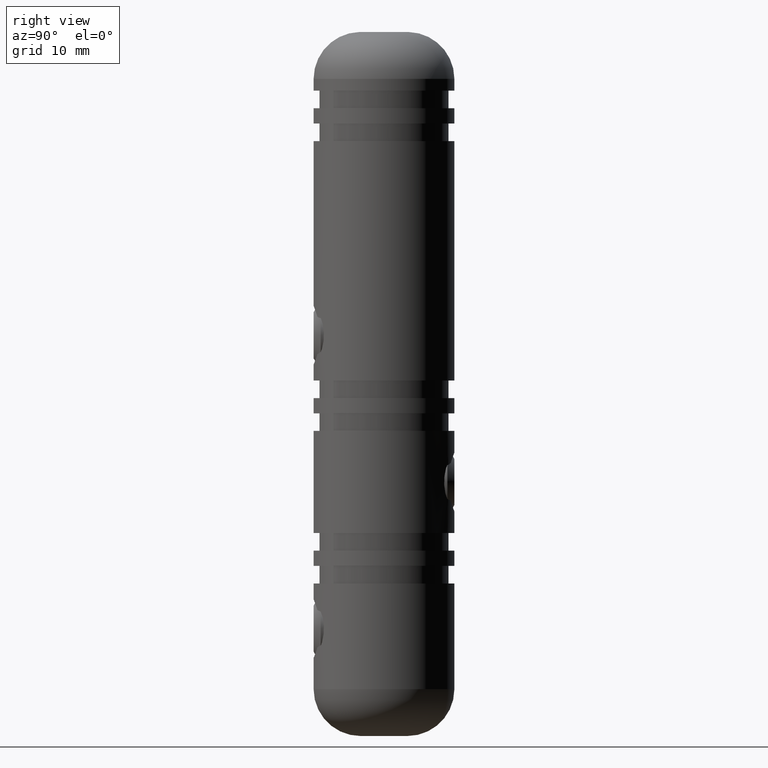
[diagram: clean part render]
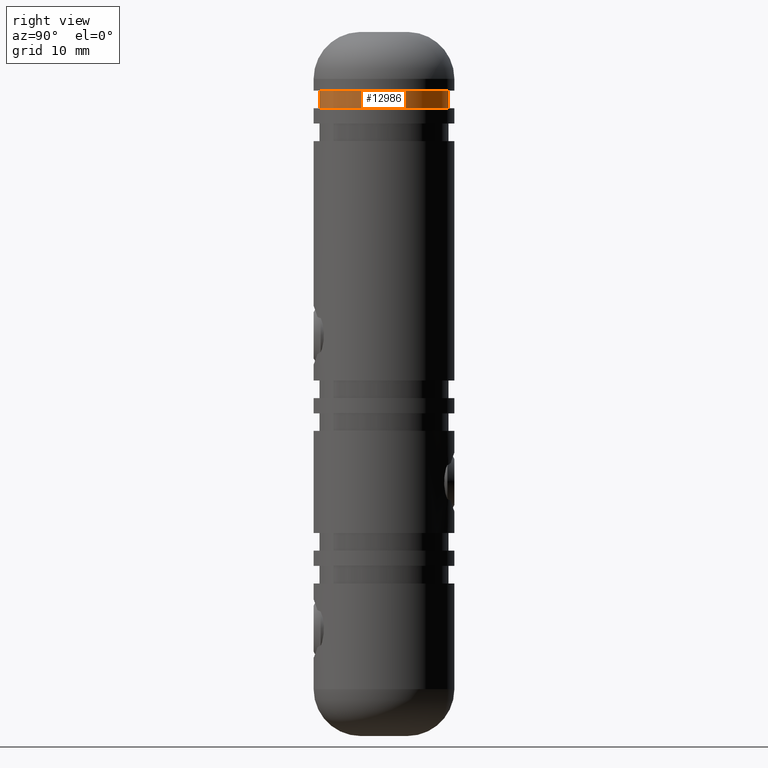
[diagram: same view with one face highlighted and labeled with its STEP entity id]
A machine part, right view. The second image highlights one B-rep face of the part: STEP entity #12986.
In plain terms, the highlighted cylindrical surface (partial cylindrical patch) has radius 5.5 mm, axis along (0, 0, 1).
Its self-contained STEP definition (entity closure, byte-faithful):
#229 = DIRECTION ( 'NONE',  ( -0.0000000000000000000, 6.237694939725493400E-017, 1.000000000000000000 ) ) ;
#1010 = CARTESIAN_POINT ( 'NONE',  ( 6.735557395310421300E-016, 5.499999999999982200, 23.49999999999999600 ) ) ;
#1074 = FACE_OUTER_BOUND ( 'NONE', #6269, .T. ) ;
#1423 = AXIS2_PLACEMENT_3D ( 'NONE', #2591, #2832, #12348 ) ;
#2045 = ORIENTED_EDGE ( 'NONE', *, *, #14246, .F. ) ;
#2114 = VECTOR ( 'NONE', #229, 1000.000000000000000 ) ;
#2357 = CARTESIAN_POINT ( 'NONE',  ( 0.0000000000000000000, -3.118847469862743400E-016, 24.99999999999999600 ) ) ;
#2457 = EDGE_CURVE ( 'NONE', #14737, #2703, #12142, .T. ) ;
#2523 = VERTEX_POINT ( 'NONE', #11068 ) ;
#2591 = CARTESIAN_POINT ( 'NONE',  ( 0.0000000000000000000, -4.054501710821568100E-016, 23.49999999999999600 ) ) ;
#2703 = VERTEX_POINT ( 'NONE', #15836 ) ;
#2819 = CIRCLE ( 'NONE', #1423, 5.499999999999982200 ) ;
#2832 = DIRECTION ( 'NONE',  ( -0.0000000000000000000, 6.237694939725493400E-017, 1.000000000000000000 ) ) ;
#2934 = AXIS2_PLACEMENT_3D ( 'NONE', #11958, #13207, #8979 ) ;
#4141 = VERTEX_POINT ( 'NONE', #1010 ) ;
#5540 = VECTOR ( 'NONE', #9364, 1000.000000000000000 ) ;
#5946 = CIRCLE ( 'NONE', #14464, 5.499999999999982200 ) ;
#6269 = EDGE_LOOP ( 'NONE', ( #6853, #15814, #2045, #16819 ) ) ;
#6853 = ORIENTED_EDGE ( 'NONE', *, *, #12204, .T. ) ;
#8979 = DIRECTION ( 'NONE',  ( 0.0000000000000000000, -1.000000000000000000, 0.0000000000000000000 ) ) ;
#9364 = DIRECTION ( 'NONE',  ( -0.0000000000000000000, 6.237694939725493400E-017, 1.000000000000000000 ) ) ;
#10020 = CARTESIAN_POINT ( 'NONE',  ( 0.0000000000000000000, -5.499999999999982200, 23.49999999999999600 ) ) ;
#11068 = CARTESIAN_POINT ( 'NONE',  ( 6.735557395310421300E-016, 5.499999999999982200, 24.99999999999999600 ) ) ;
#11699 = DIRECTION ( 'NONE',  ( -0.0000000000000000000, 6.237694939725493400E-017, 1.000000000000000000 ) ) ;
#11958 = CARTESIAN_POINT ( 'NONE',  ( 0.0000000000000000000, 3.851859888774471700E-031, 30.00000000000000000 ) ) ;
#12142 = LINE ( 'NONE', #16347, #5540 ) ;
#12204 = EDGE_CURVE ( 'NONE', #14737, #4141, #2819, .T. ) ;
#12348 = DIRECTION ( 'NONE',  ( 0.0000000000000000000, -1.000000000000000000, 0.0000000000000000000 ) ) ;
#12418 = CARTESIAN_POINT ( 'NONE',  ( 6.735557395310421300E-016, 5.499999999999982200, 30.00000000000000000 ) ) ;
#12986 = ADVANCED_FACE ( 'NONE', ( #1074 ), #13232, .T. ) ;
#13191 = DIRECTION ( 'NONE',  ( 0.0000000000000000000, -1.000000000000000000, 0.0000000000000000000 ) ) ;
#13207 = DIRECTION ( 'NONE',  ( -0.0000000000000000000, 6.237694939725493400E-017, 1.000000000000000000 ) ) ;
#13232 = CYLINDRICAL_SURFACE ( 'NONE', #2934, 5.499999999999982200 ) ;
#14246 = EDGE_CURVE ( 'NONE', #2703, #2523, #5946, .T. ) ;
#14464 = AXIS2_PLACEMENT_3D ( 'NONE', #2357, #11699, #13191 ) ;
#14713 = LINE ( 'NONE', #12418, #2114 ) ;
#14737 = VERTEX_POINT ( 'NONE', #10020 ) ;
#14846 = EDGE_CURVE ( 'NONE', #4141, #2523, #14713, .T. ) ;
#15814 = ORIENTED_EDGE ( 'NONE', *, *, #14846, .T. ) ;
#15836 = CARTESIAN_POINT ( 'NONE',  ( 0.0000000000000000000, -5.499999999999982200, 24.99999999999999600 ) ) ;
#16347 = CARTESIAN_POINT ( 'NONE',  ( 0.0000000000000000000, -5.499999999999982200, 30.00000000000000000 ) ) ;
#16819 = ORIENTED_EDGE ( 'NONE', *, *, #2457, .F. ) ;